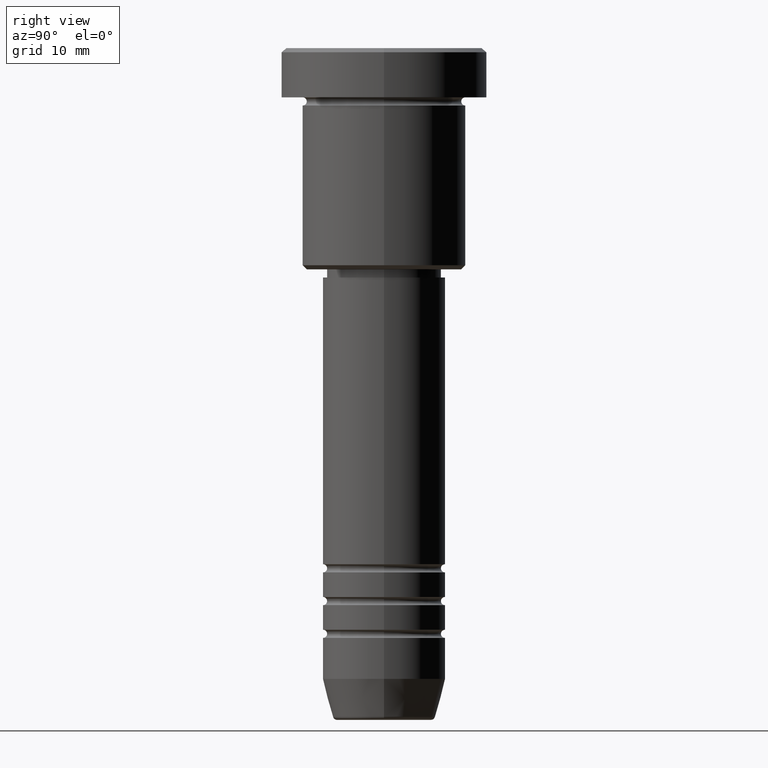
[diagram: clean part render]
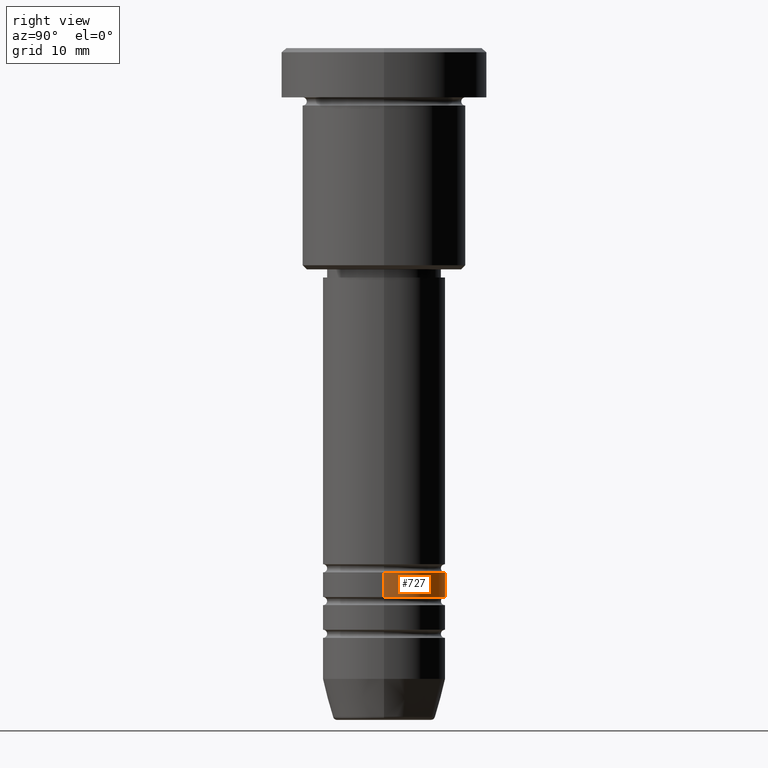
[diagram: same view with one face highlighted and labeled with its STEP entity id]
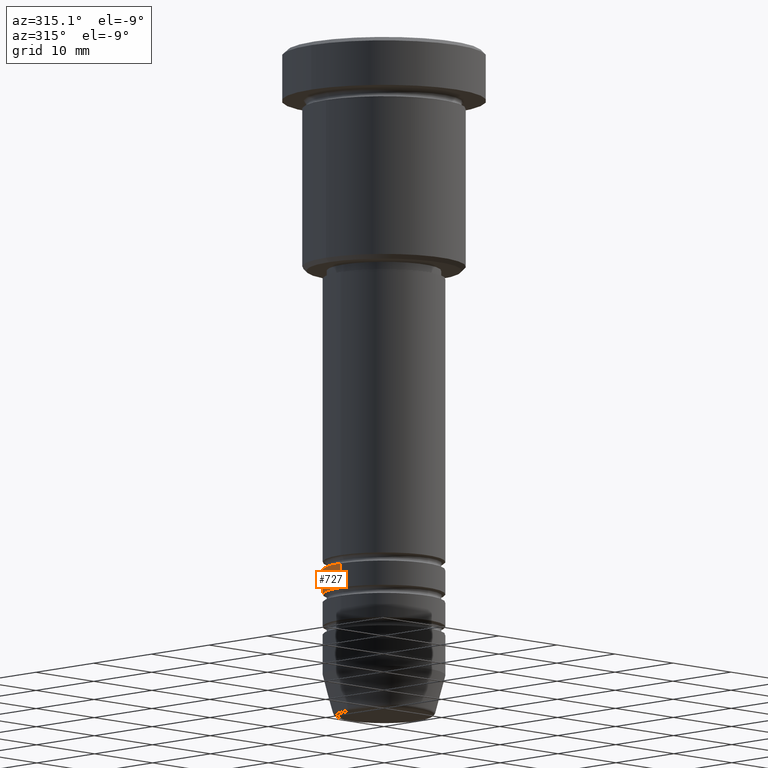
[diagram: same view with one face highlighted and labeled with its STEP entity id]
A machine part, right view. The second image highlights one B-rep face of the part: STEP entity #727.
A second angle (auxiliary view) of the same face is appended — the face is thin or edge-on in the first view.
In plain terms, the highlighted cylindrical surface (partial cylindrical patch) has radius 7.5 mm, axis along (-0, -0, 1).
Its self-contained STEP definition (entity closure, byte-faithful):
#7 = DIRECTION ( 'NONE',  ( 1.000000000000000000, 0.000000000000000000, 0.000000000000000000 ) ) ;
#20 = FACE_OUTER_BOUND ( 'NONE', #128, .T. ) ;
#32 = AXIS2_PLACEMENT_3D ( 'NONE', #428, #798, #644 ) ;
#94 = EDGE_CURVE ( 'NONE', #642, #416, #328, .T. ) ;
#100 = CARTESIAN_POINT ( 'NONE',  ( -7.500000000000000000, 9.184850993605147944E-16, -63.99999999999989342 ) ) ;
#127 = CARTESIAN_POINT ( 'NONE',  ( -7.500000000000001776, 9.184850993605149917E-16, 0.000000000000000000 ) ) ;
#128 = EDGE_LOOP ( 'NONE', ( #721, #1064, #296, #659 ) ) ;
#153 = DIRECTION ( 'NONE',  ( -0.000000000000000000, -0.000000000000000000, 1.000000000000000000 ) ) ;
#184 = CARTESIAN_POINT ( 'NONE',  ( 7.500000000000002665, 0.000000000000000000, -66.99999999999990052 ) ) ;
#296 = ORIENTED_EDGE ( 'NONE', *, *, #1153, .F. ) ;
#325 = VERTEX_POINT ( 'NONE', #184 ) ;
#328 = LINE ( 'NONE', #127, #1123 ) ;
#374 = VECTOR ( 'NONE', #1002, 1000.000000000000000 ) ;
#411 = CARTESIAN_POINT ( 'NONE',  ( 0.000000000000000000, 0.000000000000000000, -66.99999999999990052 ) ) ;
#416 = VERTEX_POINT ( 'NONE', #100 ) ;
#422 = DIRECTION ( 'NONE',  ( 1.000000000000000000, 0.000000000000000000, 0.000000000000000000 ) ) ;
#428 = CARTESIAN_POINT ( 'NONE',  ( 0.000000000000000000, 0.000000000000000000, -63.99999999999989342 ) ) ;
#501 = CARTESIAN_POINT ( 'NONE',  ( -7.500000000000003553, 9.184850993605151889E-16, -66.99999999999990052 ) ) ;
#535 = CIRCLE ( 'NONE', #32, 7.500000000000000000 ) ;
#550 = CARTESIAN_POINT ( 'NONE',  ( 0.000000000000000000, 0.000000000000000000, 0.000000000000000000 ) ) ;
#562 = VERTEX_POINT ( 'NONE', #690 ) ;
#607 = DIRECTION ( 'NONE',  ( -0.000000000000000000, -0.000000000000000000, 1.000000000000000000 ) ) ;
#642 = VERTEX_POINT ( 'NONE', #501 ) ;
#644 = DIRECTION ( 'NONE',  ( 1.000000000000000000, 0.000000000000000000, 0.000000000000000000 ) ) ;
#659 = ORIENTED_EDGE ( 'NONE', *, *, #897, .F. ) ;
#690 = CARTESIAN_POINT ( 'NONE',  ( 7.500000000000000000, 0.000000000000000000, -63.99999999999989342 ) ) ;
#721 = ORIENTED_EDGE ( 'NONE', *, *, #1100, .T. ) ;
#727 = ADVANCED_FACE ( 'NONE', ( #20 ), #742, .T. ) ;
#742 = CYLINDRICAL_SURFACE ( 'NONE', #1013, 7.500000000000001776 ) ;
#758 = DIRECTION ( 'NONE',  ( -0.000000000000000000, -0.000000000000000000, 1.000000000000000000 ) ) ;
#798 = DIRECTION ( 'NONE',  ( -0.000000000000000000, -0.000000000000000000, 1.000000000000000000 ) ) ;
#897 = EDGE_CURVE ( 'NONE', #325, #562, #961, .T. ) ;
#961 = LINE ( 'NONE', #981, #374 ) ;
#981 = CARTESIAN_POINT ( 'NONE',  ( 7.500000000000001776, 0.000000000000000000, 0.000000000000000000 ) ) ;
#994 = CIRCLE ( 'NONE', #1049, 7.500000000000002665 ) ;
#1002 = DIRECTION ( 'NONE',  ( -0.000000000000000000, -0.000000000000000000, 1.000000000000000000 ) ) ;
#1013 = AXIS2_PLACEMENT_3D ( 'NONE', #550, #758, #7 ) ;
#1049 = AXIS2_PLACEMENT_3D ( 'NONE', #411, #153, #422 ) ;
#1064 = ORIENTED_EDGE ( 'NONE', *, *, #94, .T. ) ;
#1100 = EDGE_CURVE ( 'NONE', #325, #642, #994, .T. ) ;
#1123 = VECTOR ( 'NONE', #607, 1000.000000000000000 ) ;
#1153 = EDGE_CURVE ( 'NONE', #562, #416, #535, .T. ) ;